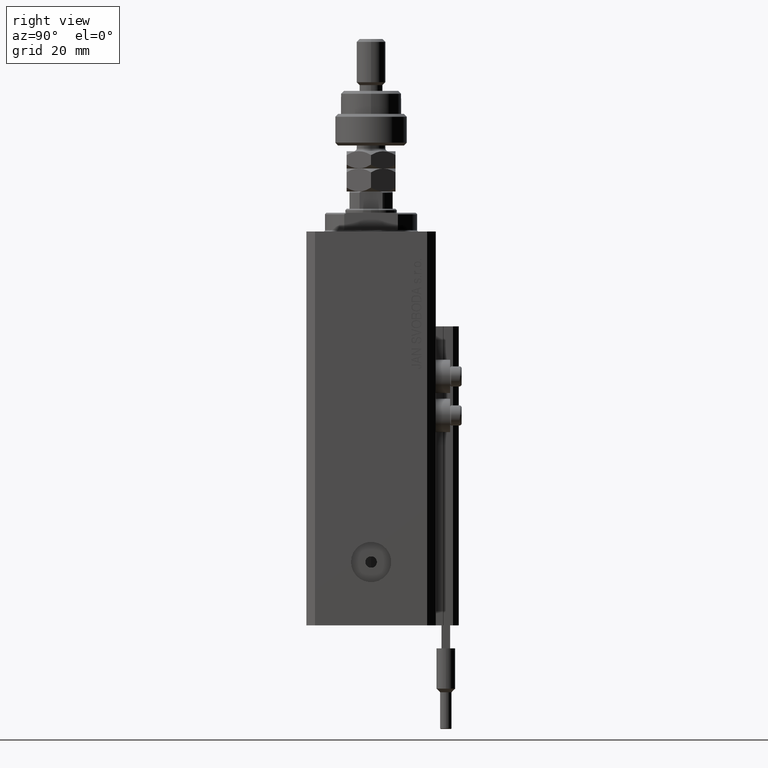
[diagram: clean part render]
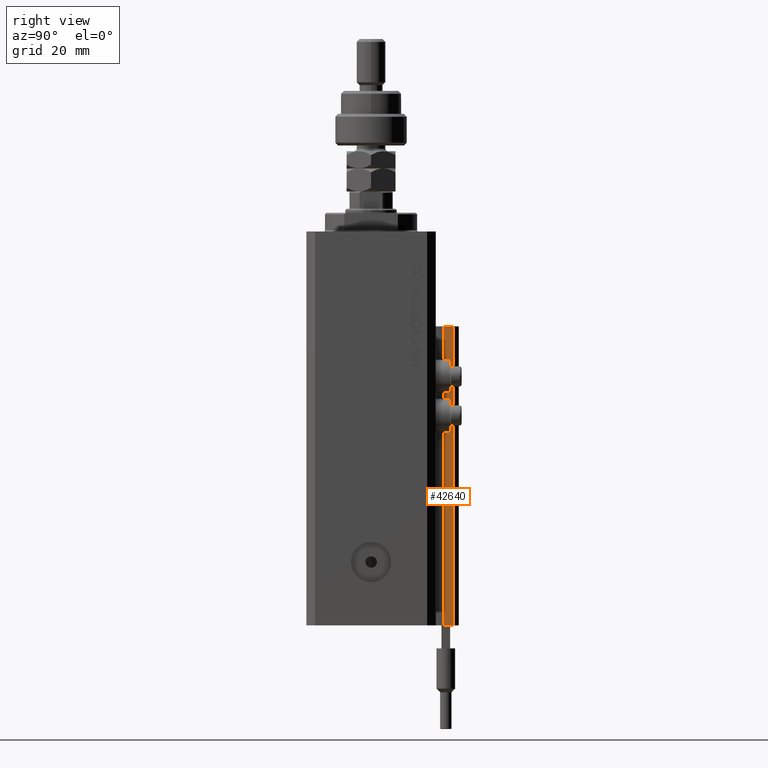
[diagram: same view with one face highlighted and labeled with its STEP entity id]
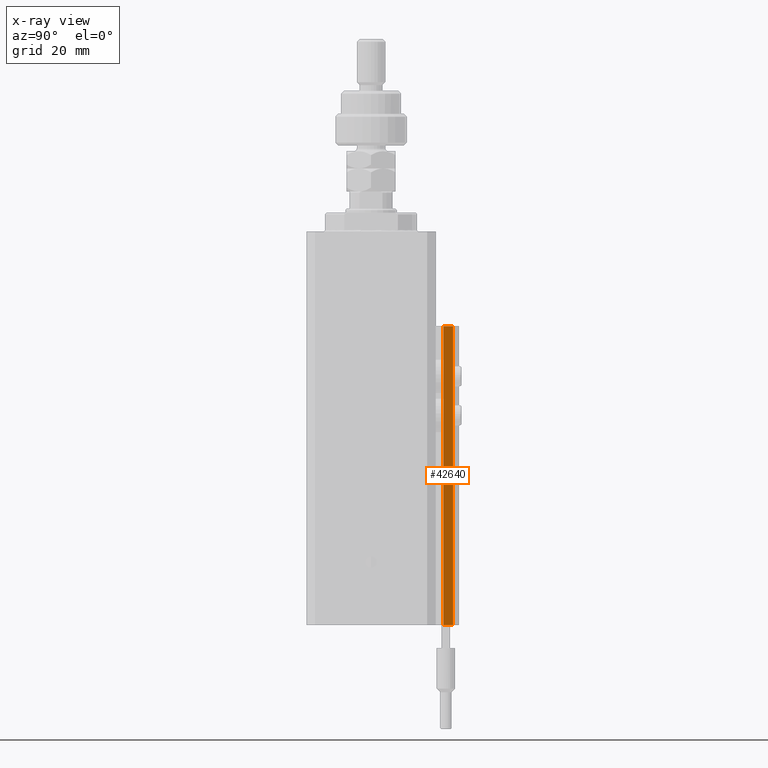
[diagram: x-ray of the same camera — body ghosted, the highlighted face saturated]
A machine part, right view. The second image highlights one B-rep face of the part: STEP entity #42640.
The next image is the same camera in x-ray: the body ghosted, the highlighted face saturated — about 0% of this face is hidden behind the body in this view.
In plain terms, the highlighted planar face has unit normal (1, 0, 0).
Its self-contained STEP definition (entity closure, byte-faithful):
#488 = ORIENTED_EDGE ( 'NONE', *, *, #33278, .F. ) ;
#685 = EDGE_CURVE ( 'NONE', #47602, #11148, #27769, .T. ) ;
#961 = VECTOR ( 'NONE', #7989, 1000.000000000000000 ) ;
#3636 = CARTESIAN_POINT ( 'NONE',  ( 12.00000000000000178, 25.19999999999951257, -137.0000000000000000 ) ) ;
#4657 = CARTESIAN_POINT ( 'NONE',  ( 12.00000000000000355, 25.19999999999951257, -137.0000000000000000 ) ) ;
#5899 = LINE ( 'NONE', #21576, #14426 ) ;
#7989 = DIRECTION ( 'NONE',  ( 0.000000000000000000, 0.000000000000000000, 1.000000000000000000 ) ) ;
#9388 = AXIS2_PLACEMENT_3D ( 'NONE', #25526, #36345, #24775 ) ;
#10643 = ORIENTED_EDGE ( 'NONE', *, *, #685, .T. ) ;
#11148 = VERTEX_POINT ( 'NONE', #38413 ) ;
#11592 = LINE ( 'NONE', #27264, #961 ) ;
#13028 = VECTOR ( 'NONE', #34981, 1000.000000000000000 ) ;
#14426 = VECTOR ( 'NONE', #17958, 1000.000000000000000 ) ;
#16677 = VECTOR ( 'NONE', #26153, 1000.000000000000000 ) ;
#17805 = FACE_OUTER_BOUND ( 'NONE', #30866, .T. ) ;
#17958 = DIRECTION ( 'NONE',  ( 0.000000000000000000, 0.000000000000000000, 1.000000000000000000 ) ) ;
#21576 = CARTESIAN_POINT ( 'NONE',  ( 12.00000000000000178, 28.49999999999950973, -137.0000000000000000 ) ) ;
#24775 = DIRECTION ( 'NONE',  ( 0.000000000000000000, 0.000000000000000000, -1.000000000000000000 ) ) ;
#25526 = CARTESIAN_POINT ( 'NONE',  ( 12.00000000000000178, 25.19999999999951257, -137.0000000000000000 ) ) ;
#25609 = CARTESIAN_POINT ( 'NONE',  ( 12.00000000000000178, 28.49999999999950973, -33.00000000000000000 ) ) ;
#26153 = DIRECTION ( 'NONE',  ( 0.000000000000000000, 1.000000000000000000, 0.000000000000000000 ) ) ;
#26172 = VERTEX_POINT ( 'NONE', #37875 ) ;
#27208 = ORIENTED_EDGE ( 'NONE', *, *, #50636, .T. ) ;
#27264 = CARTESIAN_POINT ( 'NONE',  ( 12.00000000000000355, 25.19999999999951257, -137.0000000000000000 ) ) ;
#27769 = LINE ( 'NONE', #3636, #13028 ) ;
#28857 = PLANE ( 'NONE',  #9388 ) ;
#29998 = LINE ( 'NONE', #45704, #16677 ) ;
#30866 = EDGE_LOOP ( 'NONE', ( #39349, #488, #10643, #27208 ) ) ;
#33278 = EDGE_CURVE ( 'NONE', #47602, #26172, #11592, .T. ) ;
#34981 = DIRECTION ( 'NONE',  ( 0.000000000000000000, 1.000000000000000000, 0.000000000000000000 ) ) ;
#36345 = DIRECTION ( 'NONE',  ( 1.000000000000000000, 0.000000000000000000, 0.000000000000000000 ) ) ;
#37875 = CARTESIAN_POINT ( 'NONE',  ( 12.00000000000000355, 25.19999999999951257, -33.00000000000000000 ) ) ;
#38413 = CARTESIAN_POINT ( 'NONE',  ( 12.00000000000000178, 28.49999999999950973, -137.0000000000000000 ) ) ;
#39349 = ORIENTED_EDGE ( 'NONE', *, *, #40527, .F. ) ;
#40527 = EDGE_CURVE ( 'NONE', #26172, #46078, #29998, .T. ) ;
#42640 = ADVANCED_FACE ( 'NONE', ( #17805 ), #28857, .T. ) ;
#45704 = CARTESIAN_POINT ( 'NONE',  ( 12.00000000000000178, 25.19999999999951257, -33.00000000000000000 ) ) ;
#46078 = VERTEX_POINT ( 'NONE', #25609 ) ;
#47602 = VERTEX_POINT ( 'NONE', #4657 ) ;
#50636 = EDGE_CURVE ( 'NONE', #11148, #46078, #5899, .T. ) ;